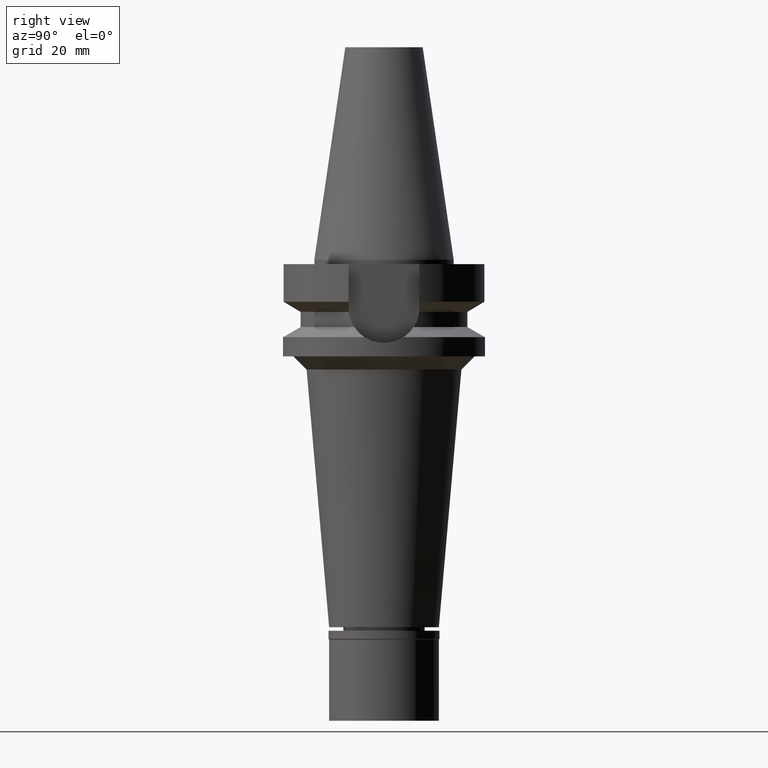
[diagram: clean part render]
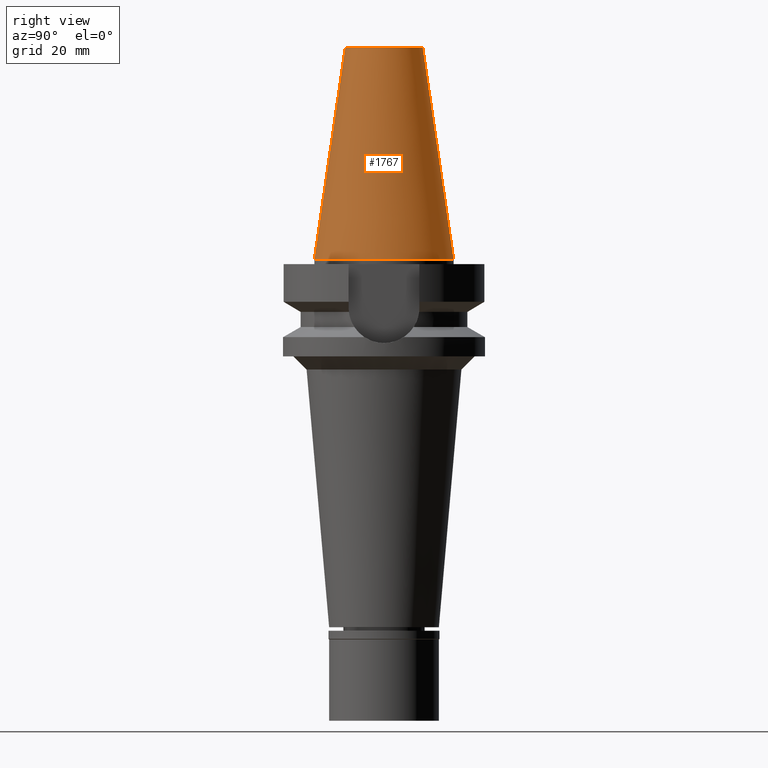
[diagram: same view with one face highlighted and labeled with its STEP entity id]
A machine part, right view. The second image highlights one B-rep face of the part: STEP entity #1767.
In plain terms, the highlighted conical surface has half-angle 8.297 deg.
Its self-contained STEP definition (entity closure, byte-faithful):
#2 = DIRECTION ( 'NONE',  ( 0.0000000000000000000, 0.0000000000000000000, -1.000000000000000000 ) ) ;
#7 = EDGE_CURVE ( 'NONE', #2554, #3022, #360, .T. ) ;
#27 = CARTESIAN_POINT ( 'NONE',  ( 0.0000000000000000000, -8.816791732783000768, 48.39999999999999858 ) ) ;
#45 = DIRECTION ( 'NONE',  ( 0.0000000000000000000, 0.1443043893539925626, -0.9895333461855498891 ) ) ;
#113 = VERTEX_POINT ( 'NONE', #2925 ) ;
#213 = VERTEX_POINT ( 'NONE', #536 ) ;
#324 = VECTOR ( 'NONE', #1599, 1000.000000000000114 ) ;
#360 = LINE ( 'NONE', #1795, #324 ) ;
#381 = ORIENTED_EDGE ( 'NONE', *, *, #588, .F. ) ;
#411 = AXIS2_PLACEMENT_3D ( 'NONE', #1001, #2468, #985 ) ;
#504 = DIRECTION ( 'NONE',  ( 0.0000000000000000000, -1.000000000000000000, 0.0000000000000000000 ) ) ;
#536 = CARTESIAN_POINT ( 'NONE',  ( 0.0000000000000000000, 8.816791732783000768, 48.39999999999999858 ) ) ;
#585 = EDGE_LOOP ( 'NONE', ( #1091, #1347, #381, #1875 ) ) ;
#588 = EDGE_CURVE ( 'NONE', #113, #3022, #2306, .T. ) ;
#688 = AXIS2_PLACEMENT_3D ( 'NONE', #2272, #1081, #3014 ) ;
#689 = LINE ( 'NONE', #2858, #1481 ) ;
#749 = CARTESIAN_POINT ( 'NONE',  ( 0.0000000000000000000, 0.0000000000000000000, 24.19999999999999929 ) ) ;
#864 = CARTESIAN_POINT ( 'NONE',  ( 0.0000000000000000000, -15.87500000000000000, -3.410605131648000255E-13 ) ) ;
#931 = CONICAL_SURFACE ( 'NONE', #1317, 12.34589586639000025, 0.1448099680379422438 ) ;
#985 = DIRECTION ( 'NONE',  ( 0.0000000000000000000, 1.000000000000000000, 0.0000000000000000000 ) ) ;
#1001 = CARTESIAN_POINT ( 'NONE',  ( 0.0000000000000000000, 0.0000000000000000000, -3.410605131648000255E-13 ) ) ;
#1081 = DIRECTION ( 'NONE',  ( 0.0000000000000000000, 0.0000000000000000000, -1.000000000000000000 ) ) ;
#1091 = ORIENTED_EDGE ( 'NONE', *, *, #2275, .T. ) ;
#1317 = AXIS2_PLACEMENT_3D ( 'NONE', #749, #2, #504 ) ;
#1347 = ORIENTED_EDGE ( 'NONE', *, *, #7, .T. ) ;
#1481 = VECTOR ( 'NONE', #45, 1000.000000000000114 ) ;
#1599 = DIRECTION ( 'NONE',  ( 0.0000000000000000000, -0.1443043893539925626, -0.9895333461855498891 ) ) ;
#1747 = EDGE_CURVE ( 'NONE', #213, #113, #689, .T. ) ;
#1767 = ADVANCED_FACE ( 'NONE', ( #2154 ), #931, .T. ) ;
#1795 = CARTESIAN_POINT ( 'NONE',  ( 0.0000000000000000000, -8.816791732783000768, 48.39999999999999858 ) ) ;
#1827 = CIRCLE ( 'NONE', #688, 8.816791732783000768 ) ;
#1875 = ORIENTED_EDGE ( 'NONE', *, *, #1747, .F. ) ;
#2154 = FACE_OUTER_BOUND ( 'NONE', #585, .T. ) ;
#2272 = CARTESIAN_POINT ( 'NONE',  ( 0.0000000000000000000, 0.0000000000000000000, 48.39999999999999858 ) ) ;
#2275 = EDGE_CURVE ( 'NONE', #213, #2554, #1827, .T. ) ;
#2306 = CIRCLE ( 'NONE', #411, 15.87500000000000000 ) ;
#2468 = DIRECTION ( 'NONE',  ( 0.0000000000000000000, 0.0000000000000000000, -1.000000000000000000 ) ) ;
#2554 = VERTEX_POINT ( 'NONE', #27 ) ;
#2858 = CARTESIAN_POINT ( 'NONE',  ( 0.0000000000000000000, 8.816791732783000768, 48.39999999999999858 ) ) ;
#2925 = CARTESIAN_POINT ( 'NONE',  ( 0.0000000000000000000, 15.87500000000000000, -1.136868377215999875E-13 ) ) ;
#3014 = DIRECTION ( 'NONE',  ( 0.0000000000000000000, 1.000000000000000000, 0.0000000000000000000 ) ) ;
#3022 = VERTEX_POINT ( 'NONE', #864 ) ;